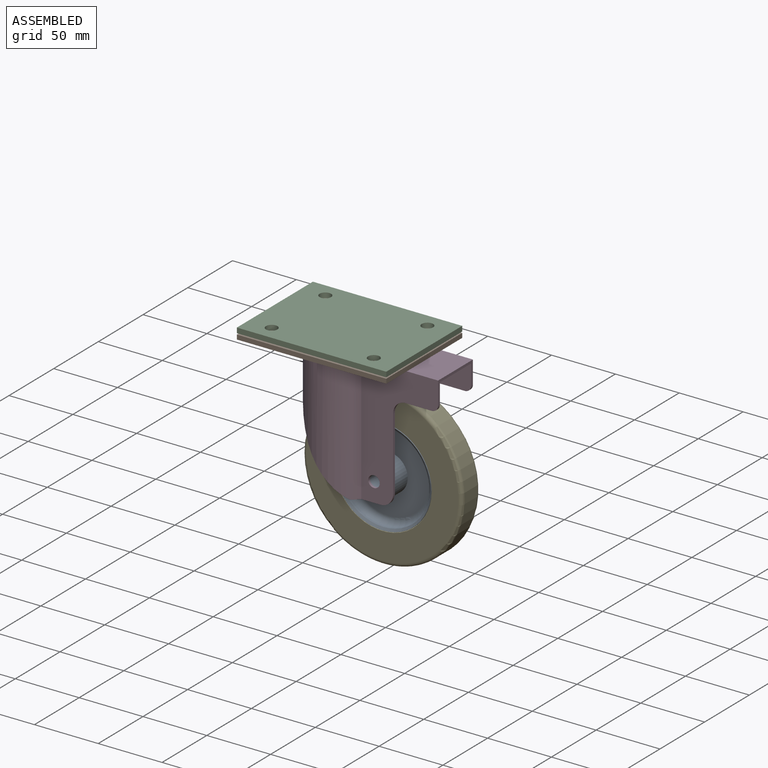
[diagram: assembled view]
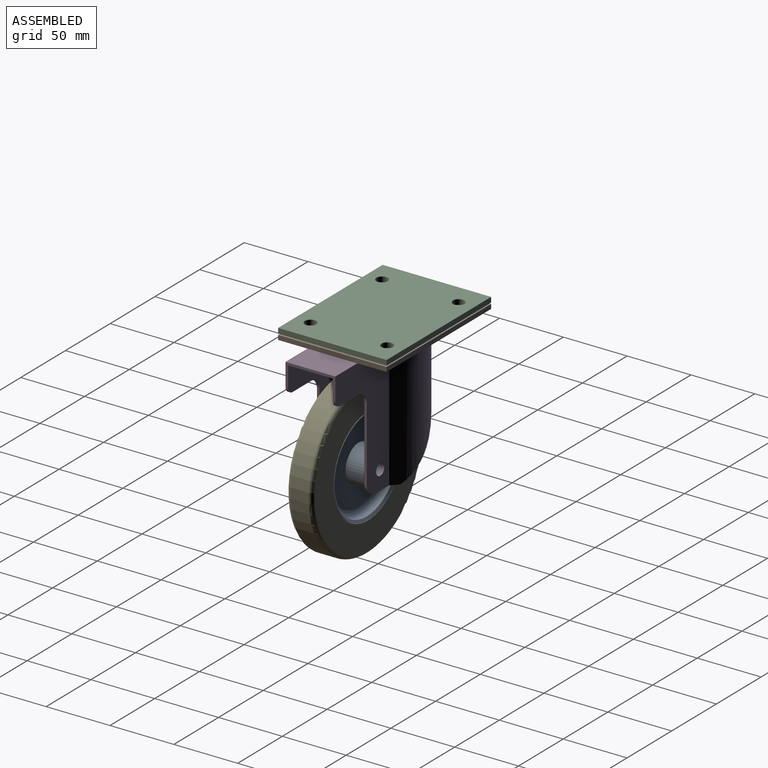
[diagram: assembled view, second angle]
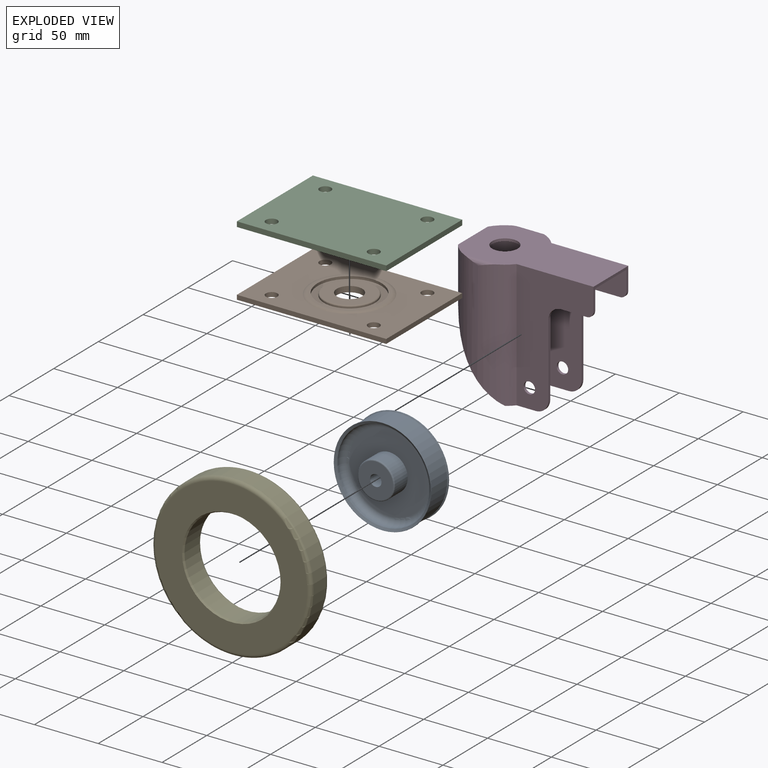
[diagram: exploded view]
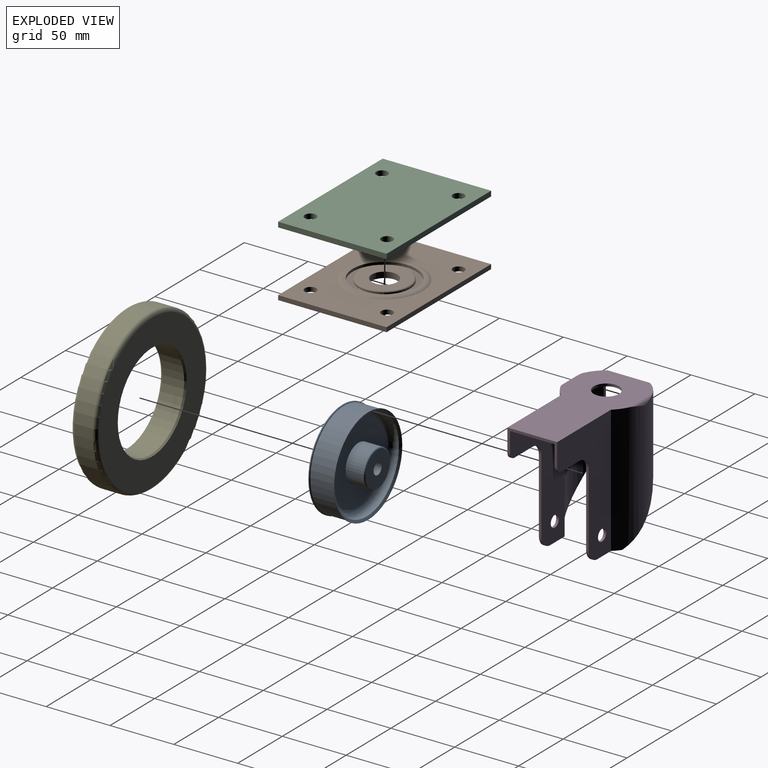
[diagram: exploded view, second angle]
ASSEMBLY  parts=5 mates=4
PART A: 22 faces, bbox 35x82.6x82.6 mm
  f0: plane 62.09x62.09mm, normal (1,0,0), area 2366.9mm2, adj f1,f21
  f1: torus R=31.04mm, axis (-1,0,0), area 1689mm2, adj f0,f2
  f2: cylinder r=36.04mm len=72.09mm, axis (-1,0,0), area 339.7mm2, adj f1,f3
  f3: cone r=36.04mm half-angle=60.3deg, axis (1,0,0), area 525.2mm2, adj f2,f4
  f4: torus R=38.05mm, axis (-1,0,0), area 50mm2, adj f3,f5
  f5: cylinder r=38.15mm len=76.31mm, axis (-1,0,0), area 147.3mm2, adj f4,f6
  f6: cone r=37.5mm half-angle=57.6deg, axis (1,0,0), area 184.2mm2, adj f5,f7
  f7: cylinder r=37.5mm len=75mm, axis (-1,0,0), area 4241.2mm2, adj f6,f8
  f8: cone r=37.5mm half-angle=57.6deg, axis (-1,0,0), area 184.2mm2, adj f7,f9
  f9: cylinder r=38.15mm len=76.31mm, axis (-1,0,0), area 147.3mm2, adj f8,f10
  f10: torus R=38.05mm, axis (-1,0,0), area 50mm2, adj f9,f11
  f11: cone r=36.04mm half-angle=60.3deg, axis (-1,0,0), area 525.2mm2, adj f10,f12
  f12: cylinder r=36.04mm len=72.09mm, axis (-1,0,0), area 339.7mm2, adj f11,f13
  f13: torus R=31.04mm, axis (-1,0,0), area 1689mm2, adj f12,f14
  f14: plane 62.09x62.09mm, normal (-1,0,0), area 2366.9mm2, adj f13,f15
  f15: cylinder r=14.5mm len=29mm, axis (-1,0,0), area 1275.5mm2, adj f14,f16
  f16: torus R=13.5mm, axis (-1,0,0), area 139.5mm2, adj f15,f17
  f17: plane 27x27mm, normal (-1,0,0), area 508.9mm2, adj f16,f18
  f18: cylinder r=4.5mm len=35mm, axis (-1,0,0), area 989.6mm2, adj f17,f19
  f19: plane 27x27mm, normal (1,0,0), area 508.9mm2, adj f18,f20
  f20: torus R=13.5mm, axis (-1,0,0), area 139.5mm2, adj f19,f21
  f21: cylinder r=14.5mm len=29mm, axis (-1,0,0), area 1275.5mm2, adj f0,f20
PART B: 18 faces, bbox 117x85x4.5 mm
  f0: plane 117x3.5mm, normal (0,-1,0), area 409.5mm2, adj f1,f3,f4,f5
  f1: plane 85x3.5mm, normal (1,0,0), area 297.5mm2, adj f0,f2,f4,f5
  f2: plane 117x3.5mm, normal (0,1,0), area 409.5mm2, adj f1,f3,f4,f5
  f3: plane 85x3.5mm, normal (-1,0,0), area 297.5mm2, adj f0,f2,f4,f5
  f4: plane 117x85mm, normal (0,0,1), area 6863.1mm2, adj f0,f1,f2,f3,f6,f7,f8,f9
  f5: plane 117x85mm, normal (0,0,-1), area 9376.4mm2, adj f0,f1,f2,f3,f6,f7,f8,f9
  f6: cylinder r=4.5mm len=9mm, axis (0,0,1), area 99mm2, adj f4,f5
  f7: cylinder r=4.5mm len=9mm, axis (0,0,1), area 99mm2, adj f4,f5
  f8: cylinder r=4.5mm len=9mm, axis (0,0,1), area 99mm2, adj f4,f5
  f9: cylinder r=4.5mm len=9mm, axis (0,0,1), area 99mm2, adj f4,f5
  f10: plane 54x54mm, normal (0,0,1), area 326.7mm2, adj f11,f12
  f11: torus R=27mm, axis (0,0,-1), area 577.3mm2, adj f4,f10
  f12: cylinder r=25mm len=50mm, axis (0,0,1), area 314.2mm2, adj f10,f13
  f13: plane 50x50mm, normal (0,0,1), area 706.9mm2, adj f12,f14
  f14: cylinder r=20mm len=40mm, axis (0,0,-1), area 125.7mm2, adj f13,f16
  f15: plane 38x38mm, normal (0,0,1), area 820mm2, adj f16,f17
  f16: torus R=19mm, axis (0,0,1), area 193.8mm2, adj f14,f15
  f17: cylinder r=10mm len=20mm, axis (0,0,1), area 282.7mm2, adj f5,f15
PART C: 10 faces, bbox 117x85x4 mm
  f0: plane 85x4mm, normal (1,0,0), area 340mm2, adj f1,f7,f8,f9
  f1: plane 117x4mm, normal (0,1,0), area 468mm2, adj f0,f2,f8,f9
  f2: plane 85x4mm, normal (-1,0,0), area 340mm2, adj f1,f7,f8,f9
  f3: cylinder r=4.5mm len=9mm, axis (0,0,1), area 113.1mm2, adj f8,f9
  f4: cylinder r=4.5mm len=9mm, axis (0,0,1), area 113.1mm2, adj f8,f9
  f5: cylinder r=4.5mm len=9mm, axis (0,0,1), area 113.1mm2, adj f8,f9
  f6: cylinder r=4.5mm len=9mm, axis (0,0,1), area 113.1mm2, adj f8,f9
  f7: plane 117x4mm, normal (0,-1,0), area 468mm2, adj f0,f2,f8,f9
  f8: plane 117x85mm, normal (0,0,-1), area 9690.5mm2, adj f0,f1,f2,f3,f4,f5,f6,f7
  f9: plane 117x85mm, normal (0,0,1), area 9690.5mm2, adj f0,f1,f2,f3,f4,f5,f6,f7
PART D: 33 faces, bbox 60x100x108 mm
  f0: plane 39x17.76mm, normal (0,0,1), area 141mm2, adj f1,f2,f3,f4,f8,f18,f24,f25
  f1: plane 98x61.14mm, normal (-1,0,0), area 3204mm2, adj f0,f6,f16,f18,f25,f26,f27,f28
  f2: plane 98x61.14mm, normal (1,0,0), area 3204mm2, adj f0,f5,f17,f18,f20,f21,f22,f23
  f3: plane 100x60.2mm, normal (1,0,0), area 3232.2mm2, adj f0,f6,f8,f15,f25,f26,f27,f28
  f4: plane 100x60.2mm, normal (-1,0,0), area 3232.2mm2, adj f0,f5,f8,f14,f20,f21,f22,f23
  f5: plane 20.48x7mm, normal (0,-1,0), area 44.8mm2, adj f2,f4,f10,f14,f17,f23
  f6: plane 20.48x7mm, normal (0,-1,0), area 44.8mm2, adj f1,f3,f11,f15,f16,f26
  f7: cylinder r=3mm len=26.15mm, axis (0,0,-1), area 65.8mm2, adj f8,f15
  f8: plane 108x54mm, normal (0,1,0), area 4450.6mm2, adj f0,f3,f4,f7,f9,f14,f15,f19
  f9: cylinder r=3mm len=26.15mm, axis (0,0,-1), area 65.8mm2, adj f8,f14
  f10: cylinder r=100mm len=57.53mm, axis (1,0,0), area 157.8mm2, adj f5,f12,f14,f17
  f11: cylinder r=100mm len=57.53mm, axis (1,0,0), area 157.8mm2, adj f6,f13,f15,f16
  f12: plane 48.42x2.51mm, normal (1,0,0), area 112mm2, adj f10,f14,f17,f18
  f13: plane 48.42x2.51mm, normal (-1,0,0), area 112mm2, adj f11,f15,f16,f18
  f14: cylinder r=30mm len=100mm, axis (0,-1,0), area 4332.6mm2, adj f4,f5,f8,f9,f10,f12,f18,f19
  f15: cylinder r=30mm len=100mm, axis (0,-1,0), area 4332.6mm2, adj f3,f6,f7,f8,f11,f13,f18,f19
  f16: cylinder r=28mm len=98mm, axis (0,-1,0), area 4030.5mm2, adj f1,f6,f11,f13,f18
  f17: cylinder r=28mm len=98mm, axis (0,-1,0), area 4030.6mm2, adj f2,f5,f10,f12,f18
  f18: plane 108x56mm, normal (0,-1,0), area 4104.7mm2, adj f0,f1,f2,f12,f13,f14,f15,f16
  f19: plane 33.17x2mm, normal (0,0,-1), area 66.3mm2, adj f8,f14,f15,f18
  f20: plane 20.2x2mm, normal (0,-1,0), area 40.4mm2, adj f2,f4,f21,f24
  f21: cylinder r=10mm len=10mm, axis (1,0,0), area 31.4mm2, adj f2,f4,f20,f22
  f22: plane 57.24x2mm, normal (0,0,1), area 114.5mm2, adj f2,f4,f21,f23
  f23: cylinder r=10mm len=10mm, axis (1,0,0), area 31.4mm2, adj f2,f4,f5,f22
  f24: cylinder r=5mm len=5mm, axis (1,0,0), area 15.7mm2, adj f0,f2,f4,f20
  f25: cylinder r=5mm len=5mm, axis (1,0,0), area 15.7mm2, adj f0,f1,f3,f29
  f26: cylinder r=10mm len=10mm, axis (1,0,0), area 31.4mm2, adj f1,f3,f6,f27
  f27: plane 57.24x2mm, normal (0,0,1), area 114.5mm2, adj f1,f3,f26,f28
  f28: cylinder r=10mm len=10mm, axis (1,0,0), area 31.4mm2, adj f1,f3,f27,f29
  f29: plane 20.2x2mm, normal (0,-1,0), area 40.4mm2, adj f1,f3,f25,f28
  f30: cylinder r=10mm len=20mm, axis (0,1,0), area 125.7mm2, adj f8,f18
  f31: cylinder r=4.5mm len=9mm, axis (-1,0,0), area 56.5mm2, adj f1,f3
  f32: cylinder r=4.5mm len=9mm, axis (-1,0,0), area 56.5mm2, adj f2,f4
PART E: 8 faces, bbox 20x135.3x135.3 mm
  f0: cone r=38.57mm half-angle=33.8deg, axis (-1,0,0), area 388.7mm2, adj f1,f7
  f1: cylinder r=37.67mm len=75.34mm, axis (-1,0,0), area 4095.4mm2, adj f0,f2
  f2: cone r=38.57mm half-angle=33.8deg, axis (1,0,0), area 388.7mm2, adj f1,f3
  f3: plane 119x119mm, normal (1,0,0), area 6447.5mm2, adj f2,f4
  f4: torus R=59.5mm, axis (-1,0,0), area 1818.3mm2, adj f3,f5
  f5: cylinder r=62.5mm len=125mm, axis (-1,0,0), area 5497.8mm2, adj f4,f6
  f6: torus R=59.5mm, axis (-1,0,0), area 1818.3mm2, adj f5,f7
  f7: plane 119x119mm, normal (-1,0,0), area 6447.5mm2, adj f0,f6
PLACE A rot(axis=(-0.71,-0.71,0),180deg) t=(1998.08,779.94,-622.29)mm
PLACE B t=(1965.28,780.8,-537.29)mm
PLACE C t=(1410.67,494.3,-518.29)mm
PLACE D rot(axis=(0.58,0.58,0.58),120deg) t=(1940.28,780.8,-587.29)mm
PLACE E rot(axis=(-0.58,-0.58,0.58),120deg) t=(1998.08,779.94,-622.29)mm
MATE parallel B.f11 <-> C.f8  axis (0,0,1) through (1965.28,780.8,-532.79)mm
MATE cylindrical E.f0 <-> A.f1  axis (0,-1,0) through (1998.08,780.8,-622.29)mm
MATE cylindrical D.f14 <-> B.f11  axis (0,0,1) through (1965.28,780.8,-537.29)mm
MATE cylindrical A.f1 <-> D.f31  axis (0,-1,0) through (1998.08,763.3,-622.29)mm
